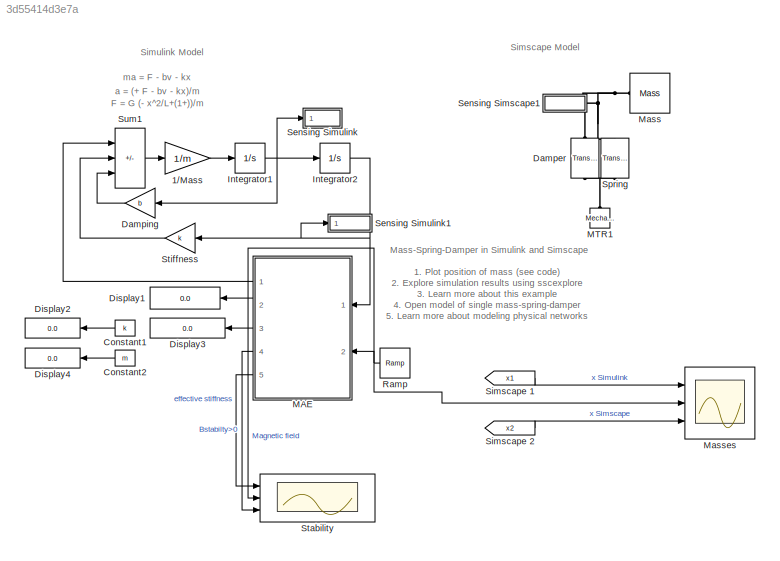
MODEL slx_3d55414d3e7a
KIND model
CONFIG AbsTol = 1e-3
CONFIG EnableMultiTasking = on
CONFIG FixedStep = auto
CONFIG MaxStep = 0.005
CONFIG MinStep = auto
CONFIG PostLoadFcn = m = 3.600;     % kg\nk = 400;    % N/m\nb = 10;      % Ns/m
CONFIG RelTol = 1e-3
CONFIG SampleTimeConstraint = Unconstrained
CONFIG SolverName = VariableStepAuto
CONFIG StartTime = 0.0
CONFIG StopTime = 10
BLOCK [Gain] 1//Mass
  Gain = 1/m
  OutDataTypeStr = Inherit: Same as input
  ParamDataTypeStr = Inherit: Same as input
  SaturateOnIntegerOverflow = on
BLOCK [Constant] Constant1
  NameLocation = top
  Value = k
BLOCK [Constant] Constant2
  NameLocation = top
  Value = m
BLOCK [Reference] Damper  REF=fl_lib/Mechanical/Translational
Elements/Translational Damper
  Commented = on
  NameLocation = left
  Ports = [0, 0, 0, 0, 0, 1, 1]
  SourceBlock = fl_lib/Mechanical/Translational\nElements/Translational Damper
  SourceProductBaseCode = SS
  SourceType = Translational Damper
BLOCK [Gain] Damping
  Commented = on
  Gain = b
  OutDataTypeStr = Inherit: Same as input
  ParamDataTypeStr = Inherit: Same as input
  SaturateOnIntegerOverflow = on
BLOCK [Display] Display1
  Decimation = 1
  NameLocation = top
  Ports = [1]
BLOCK [Display] Display2
  Decimation = 1
  NameLocation = top
  Ports = [1]
BLOCK [Display] Display3
  Decimation = 1
  NameLocation = top
  Ports = [1]
BLOCK [Display] Display4
  Decimation = 1
  NameLocation = top
  Ports = [1]
BLOCK [Integrator] Integrator1
  Ports = [1, 1]
BLOCK [Integrator] Integrator2
  AttributesFormatString = x0 = %<InitialCondition> m
  InitialCondition = 0.001
  Ports = [1, 1]
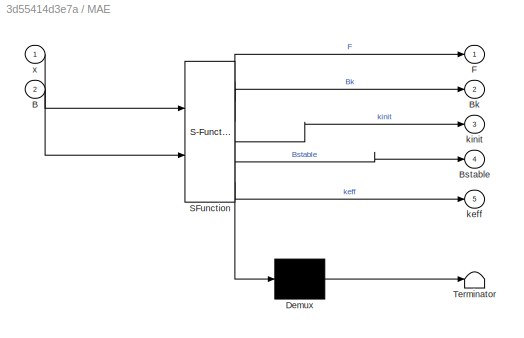
BLOCK [SubSystem] MAE
  ErrorFcn = Stateflow.Translate.translate
  NameLocation = top
  PermitHierarchicalResolution = ExplicitOnly
  Ports = [2, 5]
  RequestExecContextInheritance = off
  SFBlockType = MATLAB Function
  TreatAsAtomicUnit = on
BLOCK [Demux] MAE/ Demux 
  Outputs = 1
  Ports = [1, 1]
BLOCK [S-Function] MAE/ SFunction 
  EnableBusSupport = on
  FunctionName = sf_sfun
  PortCounts = [2 6]
  Ports = [2, 6]
  SFcnIsStateOwnerBlock = off
  SFunctionDeploymentMode = off
  Tag = Stateflow S-Function 2
BLOCK [Terminator] MAE/ Terminator 
BLOCK [Inport] MAE/B
  Port = 2
BLOCK [Outport] MAE/Bk
  Port = 2
BLOCK [Outport] MAE/Bstable
  Port = 4
BLOCK [Outport] MAE/F
BLOCK [Outport] MAE/keff
  Port = 5
BLOCK [Outport] MAE/kinit
  Port = 3
BLOCK [Inport] MAE/x
BLOCK [Reference] MTR1  REF=fl_lib/Mechanical/Translational
Elements/Mechanical
Translational
Reference
  NameLocation = right
  Ports = [0, 0, 0, 0, 0, 1]
  SourceBlock = fl_lib/Mechanical/Translational\nElements/Mechanical\nTranslational\nReference
  SourceProductBaseCode = SS
  SourceType = Mechanical\nTranslational\nReference
BLOCK [Reference] Mass  REF=fl_lib/Mechanical/Translational
Elements/Mass
  Ports = [0, 0, 0, 0, 0, 1]
  SourceBlock = fl_lib/Mechanical/Translational\nElements/Mass
  SourceProductBaseCode = SS
  SourceType = Mass
BLOCK [Scope] Masses
  Floating = off
  NameLocation = left
  NumInputPorts = 3
  Ports = [3]
  ScopeSpecificationString = Simulink.scopes.TimeScopeBlockCfg('CurrentConfiguration', extmgr.ConfigurationSet(extmgr.Configuration('Core','General UI',true,'FigureColor',[0.501960784313725 0.501960784313725 0.501960784313725]),extmgr.Configuration('Core','Source UI',true),extmgr.Configuration('Sources','WiredSimulink',true,'DataLoggingSaveFormat','Array','DataLoggingLimitDataPoints',true,'DataLoggingDecimation','1'),extmgr.C...<+3157ch>
BLOCK [Reference] Ramp  REF=simulink/Sources/Ramp
  NameLocation = top
  Ports = [0, 1]
  SourceBlock = simulink/Sources/Ramp
  SourceProductBaseCode = SL
  SourceType = Ramp
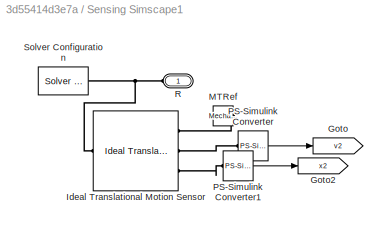
BLOCK [SubSystem] Sensing Simscape1
  Ports = [0, 0, 0, 0, 0, 1]
  RequestExecContextInheritance = off
BLOCK [Goto] Sensing Simscape1/Goto
  GotoTag = v2
  TagVisibility = global
BLOCK [Goto] Sensing Simscape1/Goto2
  GotoTag = x2
  TagVisibility = global
BLOCK [Reference] Sensing Simscape1/Ideal Translational Motion Sensor  REF=fl_lib/Mechanical/Mechanical Sensors/Ideal Translational
Motion Sensor
  Ports = [0, 0, 0, 0, 0, 1, 3]
  SourceBlock = fl_lib/Mechanical/Mechanical Sensors/Ideal Translational\nMotion Sensor
  SourceProductBaseCode = SS
  SourceType = Ideal Translational\nMotion Sensor
BLOCK [Reference] Sensing Simscape1/MTRef  REF=fl_lib/Mechanical/Translational
Elements/Mechanical
Translational
Reference
  NameLocation = top
  Ports = [0, 0, 0, 0, 0, 1]
  SourceBlock = fl_lib/Mechanical/Translational\nElements/Mechanical\nTranslational\nReference
  SourceProductBaseCode = SS
  SourceType = Mechanical\nTranslational\nReference
BLOCK [Reference] Sensing Simscape1/PS-Simulink Converter  REF=nesl_utility/PS-Simulink
Converter
  Ports = [0, 1, 0, 0, 0, 1]
  SourceBlock = nesl_utility/PS-Simulink\nConverter
  SourceProductBaseCode = PW,SS
  SourceType = PS-Simulink\nConverter
BLOCK [Reference] Sensing Simscape1/PS-Simulink Converter1  REF=nesl_utility/PS-Simulink
Converter
  Ports = [0, 1, 0, 0, 0, 1]
  SourceBlock = nesl_utility/PS-Simulink\nConverter
  SourceProductBaseCode = PW,SS
  SourceType = PS-Simulink\nConverter
BLOCK [PMIOPort] Sensing Simscape1/R
  Side = Left
BLOCK [Reference] Sensing Simscape1/Solver Configuration  REF=nesl_utility/Solver
Configuration
  NameLocation = top
  Ports = [0, 0, 0, 0, 0, 0, 1]
  SourceBlock = nesl_utility/Solver\nConfiguration
  SourceProductBaseCode = PW,SS
  SourceType = Solver\nConfiguration
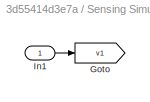
BLOCK [SubSystem] Sensing Simulink
  NameLocation = top
  Ports = [1]
  RequestExecContextInheritance = off
BLOCK [Goto] Sensing Simulink/Goto
  GotoTag = v1
  TagVisibility = global
BLOCK [Inport] Sensing Simulink/In1
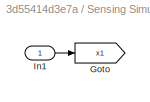
BLOCK [SubSystem] Sensing Simulink1
  NameLocation = top
  Ports = [1]
  RequestExecContextInheritance = off
BLOCK [Goto] Sensing Simulink1/Goto
  GotoTag = x1
  TagVisibility = global
BLOCK [Inport] Sensing Simulink1/In1
BLOCK [From] Simscape 1
  GotoTag = x1
  NameLocation = top
  TagVisibility = global
BLOCK [From] Simscape 2
  GotoTag = x2
  NameLocation = top
  TagVisibility = global
BLOCK [Reference] Spring  REF=fl_lib/Mechanical/Translational
Elements/Translational Spring
  AttributesFormatString = x0 = %<x> %<x_unit>
  NameLocation = right
  Ports = [0, 0, 0, 0, 0, 1, 1]
  SourceBlock = fl_lib/Mechanical/Translational\nElements/Translational Spring
  SourceProductBaseCode = SS
  SourceType = Translational Spring
BLOCK [Scope] Stability
  Floating = off
  NumInputPorts = 3
  Ports = [3]
  ScopeSpecificationString = Simulink.scopes.TimeScopeBlockCfg('CurrentConfiguration', extmgr.ConfigurationSet(extmgr.Configuration('Core','General UI',true),extmgr.Configuration('Core','Source UI',true),extmgr.Configuration('Sources','WiredSimulink',true,'DataLoggingVariableName','ScopeData1'),extmgr.Configuration('Visuals','Time Domain',true,'SerializedDisplays',{struct('MinYLimReal','3096.2283','MaxYLimReal','7308.92656','...<+2229ch>
BLOCK [Gain] Stiffness
  Commented = on
  Gain = k
  OutDataTypeStr = Inherit: Same as input
  ParamDataTypeStr = Inherit: Same as input
  SaturateOnIntegerOverflow = on
BLOCK [Sum] Sum1
  IconShape = rectangular
  InputSameDT = on
  Inputs = ---
  OutDataTypeStr = Inherit: Same as first input
  Ports = [3, 1]
  SaturateOnIntegerOverflow = on
ANNOTATION (root): F = G (- x^2/L+(1+))/m
ANNOTATION (root): a = (+ F - bv - kx)/m
ANNOTATION (root): ma = F - bv - kx
ANNOTATION (root): 1. Plot position of mass ( see code ) 2. Explore simulation results using sscexplore 3. Learn more about this example 4. Open model of single mass-spring-damper 5. Learn more about modeling physical networks
ANNOTATION (root): Simulink Model
ANNOTATION (root): Simscape Model
ANNOTATION (root): Mass-Spring-Damper in Simulink and Simscape
LINE 1//Mass:1 -> Integrator1:1
LINE Constant1:1 -> Display2:1
LINE Constant2:1 -> Display4:1
LINE Damping:1 -> Sum1:3
NET Integrator1:1 -> Damping:1, Integrator2:1, Sensing Simulink:1
NET Integrator2:1 -> MAE:1, Sensing Simulink1:1, Stiffness:1
LINE MAE:1 -> Sum1:1
LINE MAE:2 -> Display1:1
LINE MAE:3 -> Display3:1
LINE MAE:4 -> Stability:3
LINE MAE:5 -> Stability:1
NET Ramp:1 -> MAE:2, Masses:2, Stability:2
LINE Sensing Simscape1/PS-Simulink Converter1:1 -> Sensing Simscape1/Goto2:1
LINE Sensing Simscape1/PS-Simulink Converter:1 -> Sensing Simscape1/Goto:1
LINE Sensing Simulink/In1:1 -> Sensing Simulink/Goto:1
LINE Sensing Simulink1/In1:1 -> Sensing Simulink1/Goto:1
LINE Simscape 1:1 -> Masses:1
LINE Simscape 2:1 -> Masses:3
LINE Stiffness:1 -> Sum1:2
LINE Sum1:1 -> 1//Mass:1
PNET net1: Damper:LConn1 -- Mass:LConn1 -- Sensing Simscape1:LConn1 -- Spring:LConn1
PNET net2: Damper:RConn1 -- MTR1:LConn1 -- Spring:RConn1
PNET net3: Sensing Simscape1/Ideal Translational Motion Sensor:LConn1 -- Sensing Simscape1/R:RConn1 -- Sensing Simscape1/Solver Configuration:RConn1
PLINE Sensing Simscape1/Ideal Translational Motion Sensor:RConn1 -- Sensing Simscape1/MTRef:LConn1
PLINE Sensing Simscape1/Ideal Translational Motion Sensor:RConn2 -- Sensing Simscape1/PS-Simulink Converter:LConn1
PLINE Sensing Simscape1/Ideal Translational Motion Sensor:RConn3 -- Sensing Simscape1/PS-Simulink Converter1:LConn1
note: NET lines group one-source signal fan-out (src -> all destinations, sorted); 1:1 wires keep LINE; PNET lines group multi-terminal physical nets as a canonical sorted terminal list (undirected conserving connections); 2-terminal nets keep the pairwise PLINE form
CHART MAE states=1 transitions=1
  STATE_LABEL 'eML_blk_kernel()'
  STATE_LABEL 'SCRIPT:\nfunction [F,Bk,kinit,Bstable,keff] = MAE(x,B)\n\nG1 = 50*1e3;    c1 = 0.9;       mu1 = 1;                                \nG2 = 500*1e3;   c2 = 0.1;       mu2 = 10;                               \n\nmu0 = 1.25663706 * 1e-6;        L0 = 0.01;\nGbar = G1*c1 + G2*c2;           mubar = mu0*(mu1*c1 + mu2*c2);   \nGcap = 1/(c1/G1 + c2/G2);       mucap = mu0/(c1/mu1 + c2/mu2);\n\nA = L0*L0;\n\nld = 1 + x/L0...<+227ch>'
CHART  states=0 transitions=0
